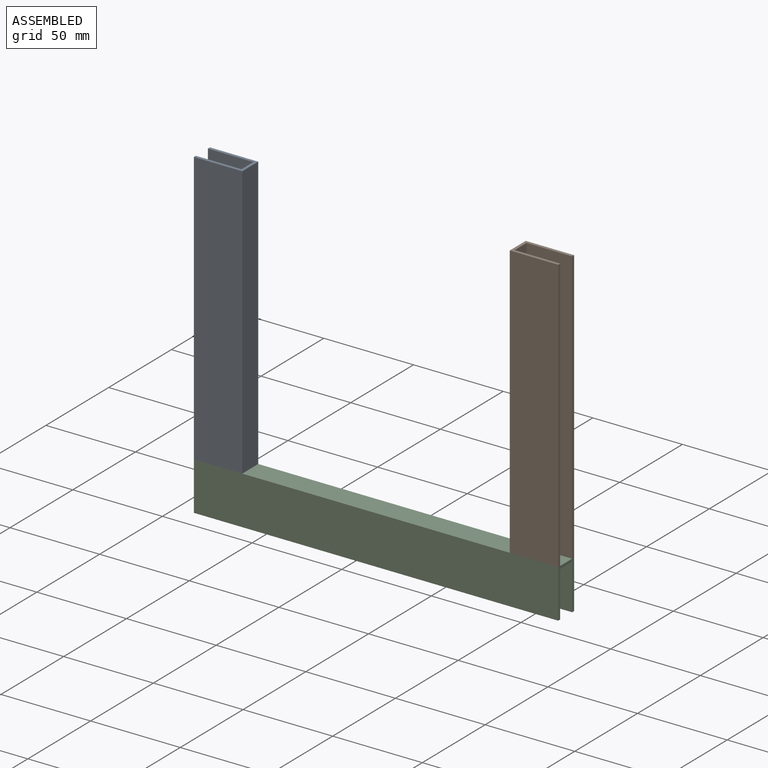
[diagram: assembled view]
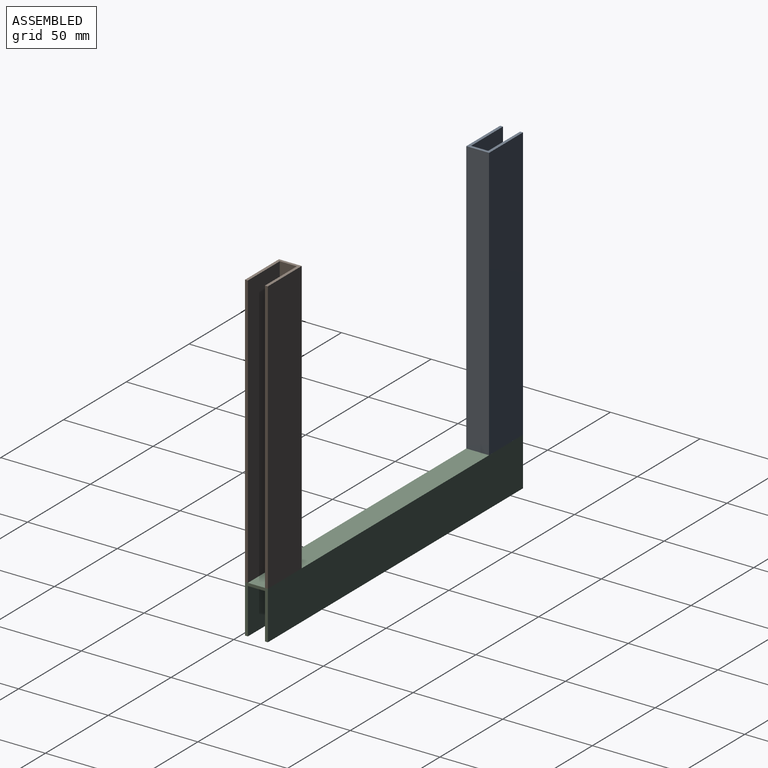
[diagram: assembled view, second angle]
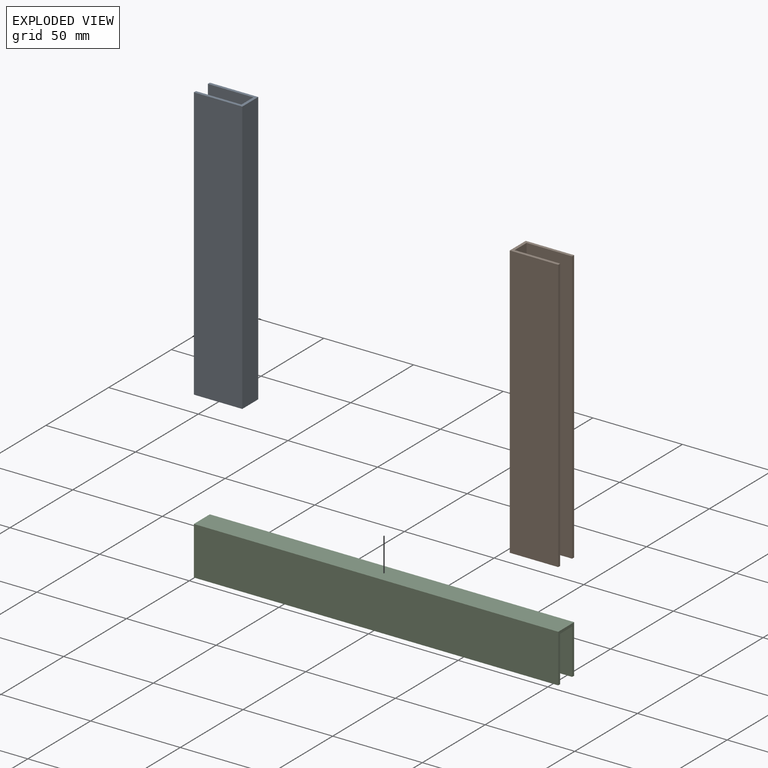
[diagram: exploded view]
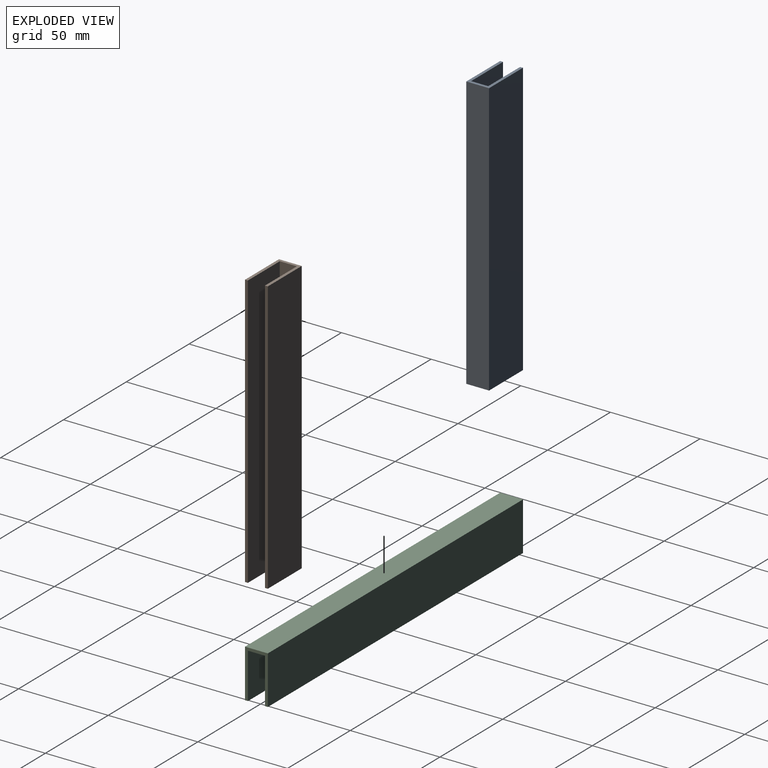
[diagram: exploded view, second angle]
ASSEMBLY  parts=3 mates=2
PART A: 10 faces, bbox 27x12.7x152.4 mm
  f0: plane 152.4x25.4mm, normal (0,-1,0), area 3871mm2, adj f1,f7,f8,f9
  f1: plane 152.4x1.6mm, normal (1,0,0), area 243.9mm2, adj f0,f2,f8,f9
  f2: plane 152.4x27mm, normal (0,1,0), area 4114.8mm2, adj f1,f3,f8,f9
  f3: plane 152.4x12.71mm, normal (-1,0,0), area 1937.4mm2, adj f2,f4,f8,f9
  f4: plane 152.4x27mm, normal (0,-1,0), area 4114.8mm2, adj f3,f5,f8,f9
  f5: plane 152.4x1.59mm, normal (1,0,0), area 241.9mm2, adj f4,f6,f8,f9
  f6: plane 152.4x25.4mm, normal (0,1,0), area 3871mm2, adj f5,f7,f8,f9
  f7: plane 152.4x9.53mm, normal (1,0,0), area 1451.6mm2, adj f0,f6,f8,f9
  f8: plane 27x12.71mm, normal (0,0,1), area 101.3mm2, adj f0,f1,f2,f3,f4,f5,f6,f7
  f9: plane 27x12.71mm, normal (0,0,-1), area 101.3mm2, adj f0,f1,f2,f3,f4,f5,f6,f7
PART B: same geometry as A
PART C: 10 faces, bbox 27x12.7x203.2 mm
  f0: plane 203.2x25.4mm, normal (0,-1,0), area 5161.3mm2, adj f1,f7,f8,f9
  f1: plane 203.2x1.6mm, normal (1,0,0), area 325.2mm2, adj f0,f2,f8,f9
  f2: plane 203.2x27mm, normal (0,1,0), area 5486.4mm2, adj f1,f3,f8,f9
  f3: plane 203.2x12.71mm, normal (-1,0,0), area 2583.2mm2, adj f2,f4,f8,f9
  f4: plane 203.2x27mm, normal (0,-1,0), area 5486.4mm2, adj f3,f5,f8,f9
  f5: plane 203.2x1.59mm, normal (1,0,0), area 322.6mm2, adj f4,f6,f8,f9
  f6: plane 203.2x25.4mm, normal (0,1,0), area 5161.3mm2, adj f5,f7,f8,f9
  f7: plane 203.2x9.53mm, normal (1,0,0), area 1935.5mm2, adj f0,f6,f8,f9
  f8: plane 27x12.71mm, normal (0,0,1), area 101.3mm2, adj f0,f1,f2,f3,f4,f5,f6,f7
  f9: plane 27x12.71mm, normal (0,0,-1), area 101.3mm2, adj f0,f1,f2,f3,f4,f5,f6,f7
PLACE A rot(axis=(0,0,1),180deg) t=(-87.65,9.61,-11.54)mm
PLACE B t=(100.34,-3.11,-11.54)mm
PLACE C rot(axis=(0,1,0),90deg) t=(-95.26,3.25,-25.44)mm
MATE fastened B.f9 <-> C.f3  axis (0,0,1) through (107.94,-3.11,-11.54)mm
MATE fastened A.f9 <-> C.f3  axis (0,0,1) through (-95.26,-3.11,-11.54)mm
